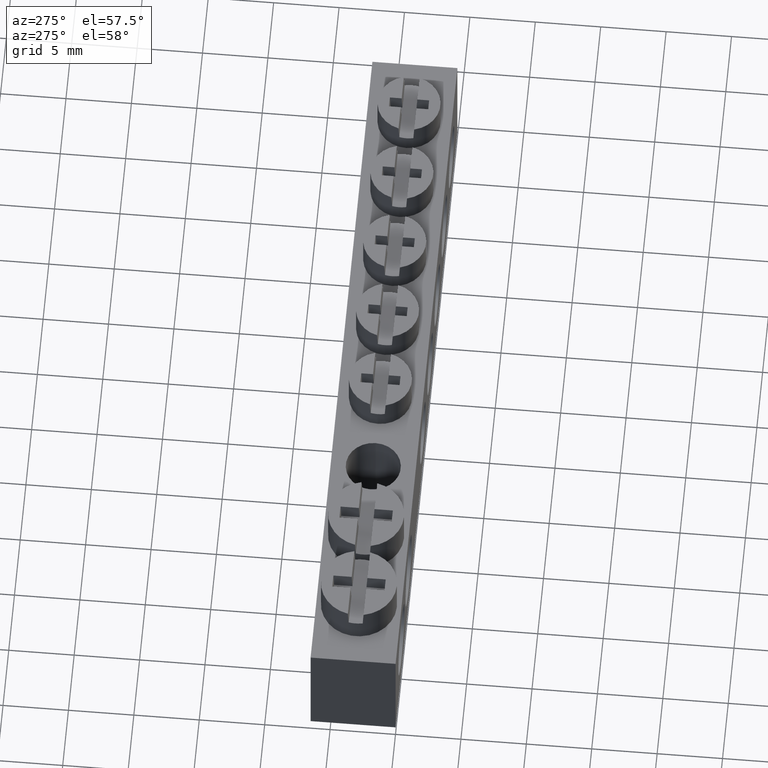
[diagram: clean part render]
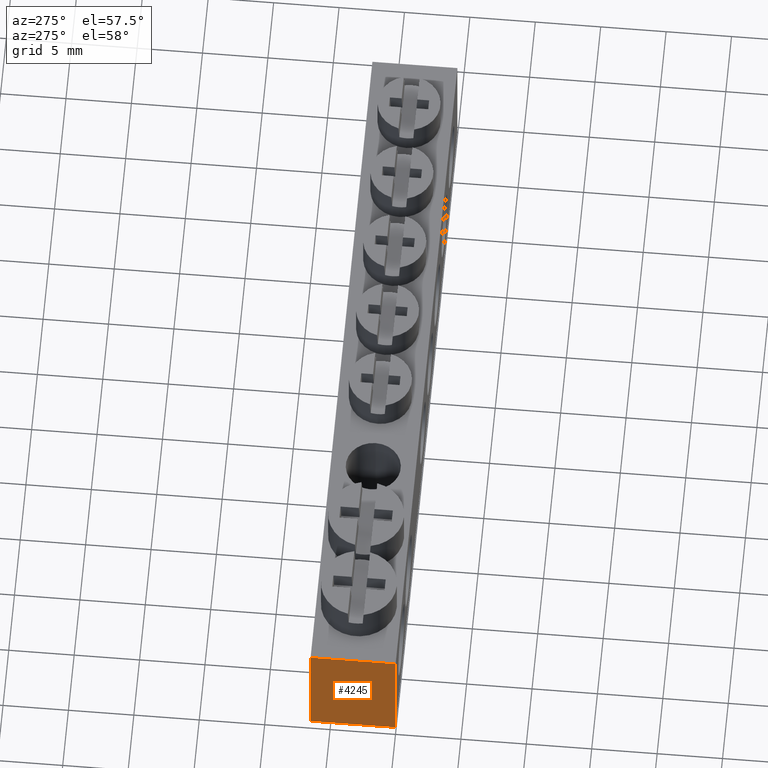
[diagram: same view with one face highlighted and labeled with its STEP entity id]
A machine part, auxiliary view. The second image highlights one B-rep face of the part: STEP entity #4245.
In plain terms, the highlighted planar face has unit normal (1, -0, 0).
Its self-contained STEP definition (entity closure, byte-faithful):
#40 = EDGE_CURVE ( 'NONE', #748, #782, #2008, .T. ) ;
#74 = EDGE_LOOP ( 'NONE', ( #442, #505, #473, #529 ) ) ;
#442 = ORIENTED_EDGE ( 'NONE', *, *, #2994, .T. ) ;
#473 = ORIENTED_EDGE ( 'NONE', *, *, #2989, .F. ) ;
#505 = ORIENTED_EDGE ( 'NONE', *, *, #2996, .T. ) ;
#529 = ORIENTED_EDGE ( 'NONE', *, *, #40, .F. ) ;
#743 = VERTEX_POINT ( 'NONE', #2282 ) ;
#748 = VERTEX_POINT ( 'NONE', #2302 ) ;
#771 = VERTEX_POINT ( 'NONE', #2287 ) ;
#782 = VERTEX_POINT ( 'NONE', #2292 ) ;
#1193 = AXIS2_PLACEMENT_3D ( 'NONE', #4414, #4431, #4403 ) ;
#2008 = LINE ( 'NONE', #2012, #2622 ) ;
#2010 = DIRECTION ( 'NONE',  ( 0.0000000000000000000, 1.000000000000000000, 0.0000000000000000000 ) ) ;
#2012 = CARTESIAN_POINT ( 'NONE',  ( 0.1000000000000000100, 0.0000000000000000000, 0.0000000000000000000 ) ) ;
#2282 = CARTESIAN_POINT ( 'NONE',  ( 0.1000000000000000100, 6.499999999999999100, 9.000000000000001800 ) ) ;
#2287 = CARTESIAN_POINT ( 'NONE',  ( 0.1000000000000000100, 0.0000000000000000000, 9.000000000000001800 ) ) ;
#2292 = CARTESIAN_POINT ( 'NONE',  ( 0.1000000000000000100, 6.499999999999999100, 0.0000000000000000000 ) ) ;
#2302 = CARTESIAN_POINT ( 'NONE',  ( 0.1000000000000000100, 0.0000000000000000000, 0.0000000000000000000 ) ) ;
#2622 = VECTOR ( 'NONE', #2010, 1000.000000000000000 ) ;
#2842 = VECTOR ( 'NONE', #3440, 1000.000000000000000 ) ;
#2861 = VECTOR ( 'NONE', #3462, 1000.000000000000000 ) ;
#2873 = VECTOR ( 'NONE', #3437, 1000.000000000000000 ) ;
#2989 = EDGE_CURVE ( 'NONE', #782, #743, #3419, .T. ) ;
#2994 = EDGE_CURVE ( 'NONE', #748, #771, #3431, .T. ) ;
#2996 = EDGE_CURVE ( 'NONE', #771, #743, #3493, .T. ) ;
#3419 = LINE ( 'NONE', #3420, #2842 ) ;
#3420 = CARTESIAN_POINT ( 'NONE',  ( 0.1000000000000000100, 6.499999999999999100, 9.000000000000001800 ) ) ;
#3431 = LINE ( 'NONE', #3441, #2873 ) ;
#3437 = DIRECTION ( 'NONE',  ( 0.0000000000000000000, 0.0000000000000000000, 1.000000000000000000 ) ) ;
#3440 = DIRECTION ( 'NONE',  ( 0.0000000000000000000, 0.0000000000000000000, 1.000000000000000000 ) ) ;
#3441 = CARTESIAN_POINT ( 'NONE',  ( 0.1000000000000000100, 0.0000000000000000000, 9.000000000000001800 ) ) ;
#3462 = DIRECTION ( 'NONE',  ( 0.0000000000000000000, 1.000000000000000000, 0.0000000000000000000 ) ) ;
#3466 = CARTESIAN_POINT ( 'NONE',  ( 0.1000000000000000100, 0.0000000000000000000, 9.000000000000001800 ) ) ;
#3493 = LINE ( 'NONE', #3466, #2861 ) ;
#4245 = ADVANCED_FACE ( 'NONE', ( #4411 ), #4406, .F. ) ;
#4403 = DIRECTION ( 'NONE',  ( 0.0000000000000000000, 0.0000000000000000000, -1.000000000000000000 ) ) ;
#4406 = PLANE ( 'NONE',  #1193 ) ;
#4411 = FACE_OUTER_BOUND ( 'NONE', #74, .T. ) ;
#4414 = CARTESIAN_POINT ( 'NONE',  ( 0.1000000000000000100, 0.0000000000000000000, 9.000000000000001800 ) ) ;
#4431 = DIRECTION ( 'NONE',  ( 1.000000000000000000, -0.0000000000000000000, 0.0000000000000000000 ) ) ;